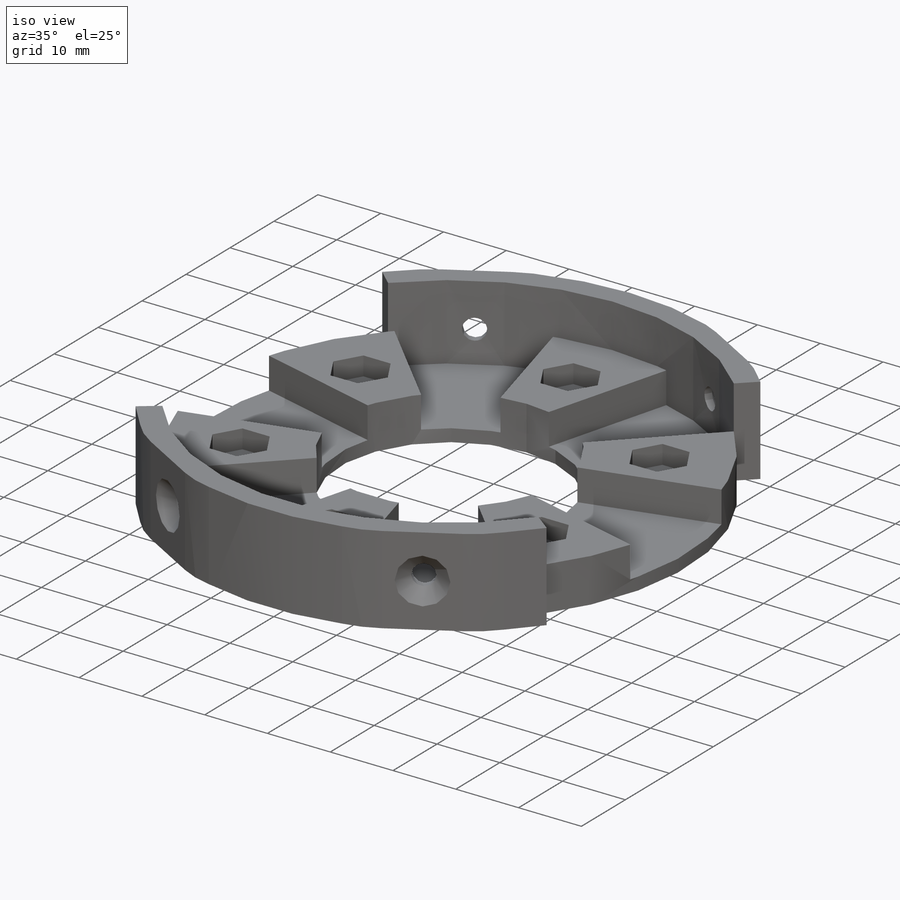
[diagram: iso view]
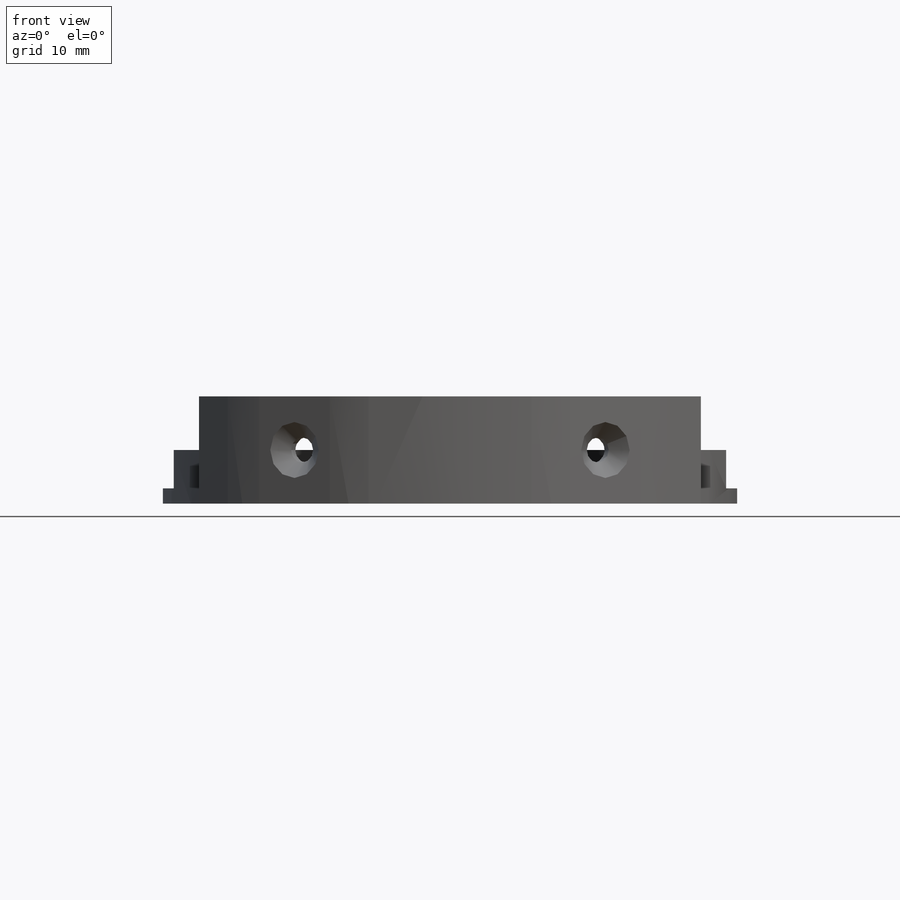
[diagram: front view]
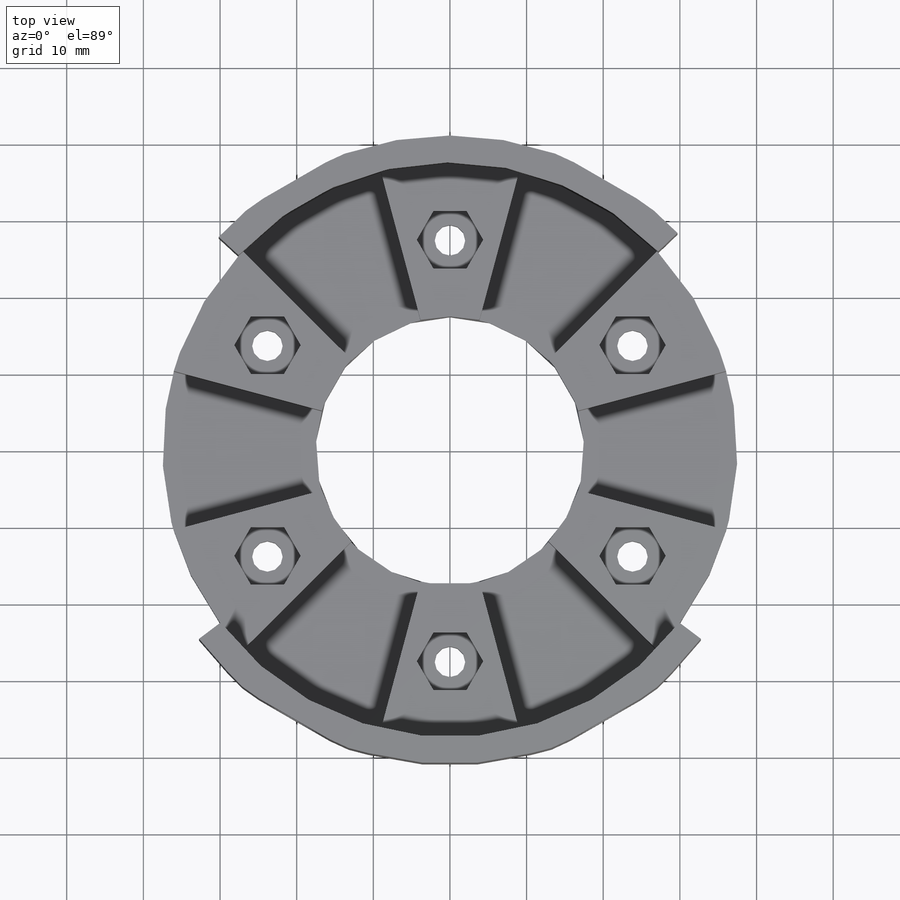
[diagram: top view]
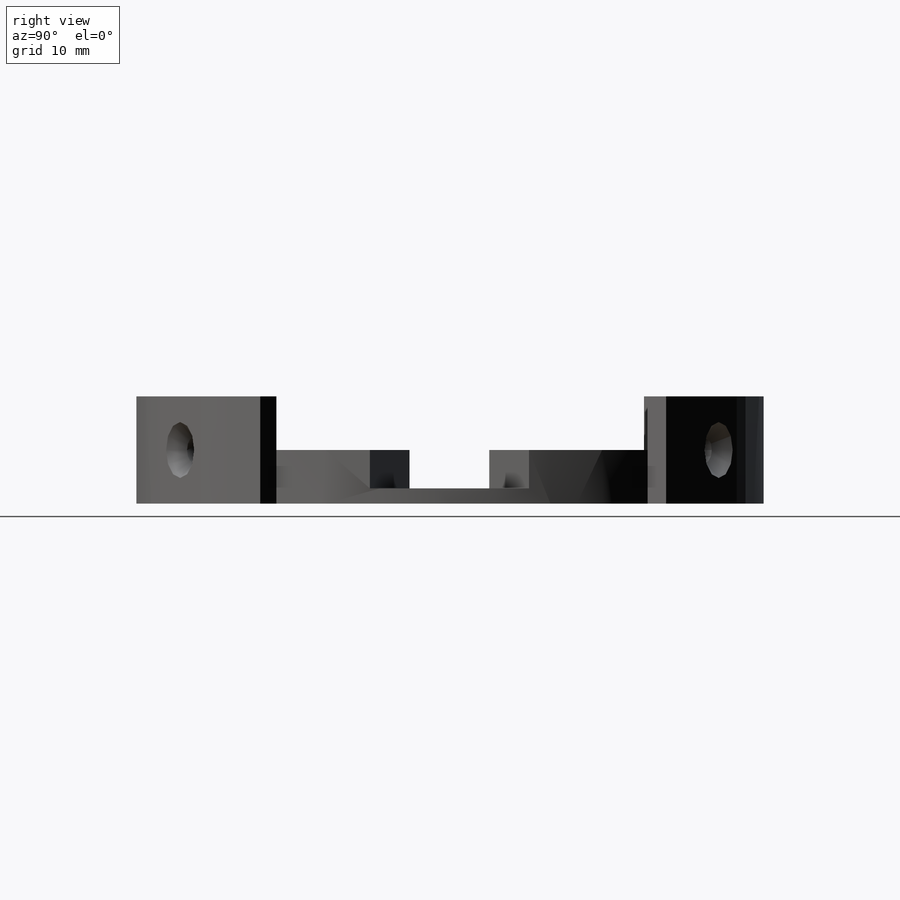
[diagram: right view]
SOLIDWORKS PART (.sldprt)
format: sldprt  version: not decoded by parser v0  size: 621,056 bytes
history: native  units: mm
features: sketch x6, extrude x4, cut_extrude x2, material x1, fillet x1, chamfer x1 (+13 scaffold rows collapsed)
feature tree (28):
  scaffold x13  (default folders/planes/origin — collapsed)
  material  "Material <not specified>"
  sketch  "Sketch1"  dims[c1.D1=4.3mm c1.D2=75.0mm c1.D4=7.5mm c1.D6=35.0mm c1.D3=27.5mm c2.D6=7.0mm c2.D7=~23.815699mm c2.D8=37.5mm c3.D8=15.0deg c3.D10=~20.002352mm c4.D10=~0.384607deg c5.D10=0.7mm c5.D11=0.7mm c5.D12=37.5mm c6.D12=15.0deg c6.D5=6.0 c6.D9=6.0 c6.D13=6.0]
  extrude  "Boss-Extrude2"  Depth=3mm
  sketch  "Sketch2"  dims[D1=4.0mm D4=75.0mm D5=35.0mm D2=27.5mm D6=~23.815699mm D7=13.75mm D3=6.0]
  extrude  "Boss-Extrude3"  Depth=2mm
  sketch  "Sketch3"  dims[D1=6.0]
  extrude  "Boss-Extrude4"  Depth=2mm
  sketch  "Sketch4"  dims[c1.D1=82.0mm c1.D2=75.0mm c1.D3=5.0mm c1.D4=5.0mm c1.D5=1.0mm c1.D6=1.0mm c1.D7=1.0mm c1.D8=1.0mm c2.D3=5.0mm c2.D4=5.0mm c2.D10=1.0mm c2.D11=1.0mm c2.D9=2.0]
  extrude  "Boss-Extrude5"  Depth=14mm
  fillet  "Fillet1"  Radius=15mm
  sketch  "Sketch6"  dims[D1=3.3mm D2=~3.741655mm]
  cut_extrude  "Cut-Extrude1"  Depth=85mm
  sketch  "Sketch7"  dims[D1=4.5mm D2=5.0mm]
  cut_extrude  "Cut-Extrude2"  Depth=85mm
  chamfer  "Chamfer2"  Distance=2mm
decode coverage: 14 of 14 modeling features carry decoded parameters
note: ~ marks probable driven/reference dimensions
note: suppression state not decoded; provenance and decode notes live in map.json
